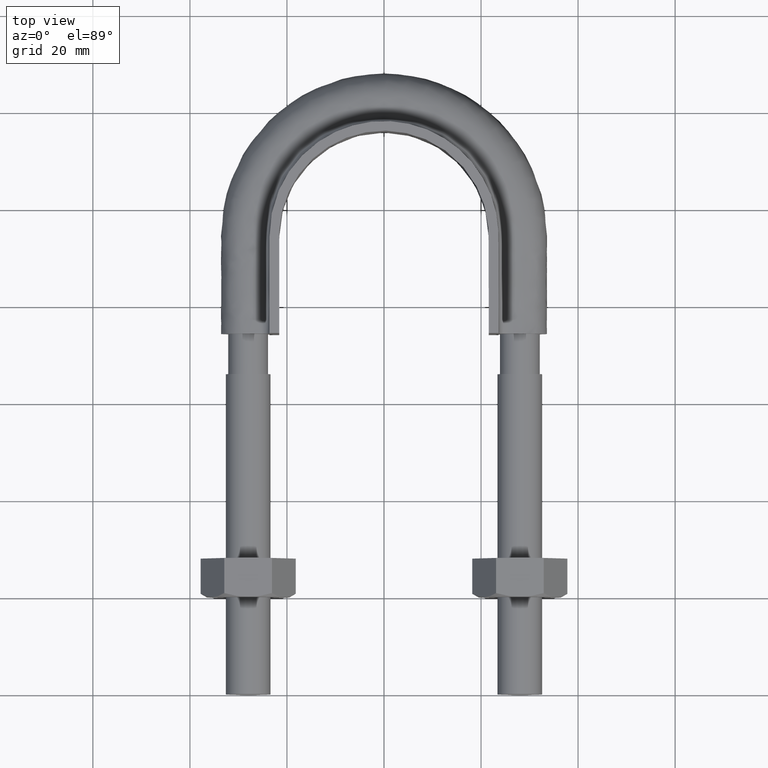
[diagram: clean part render]
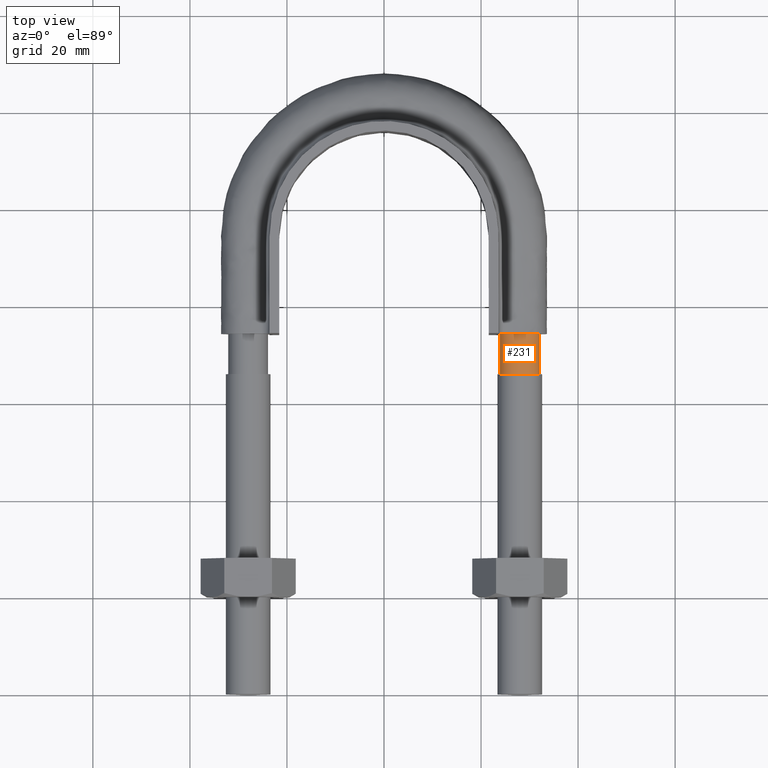
[diagram: same view with one face highlighted and labeled with its STEP entity id]
A machine part, top view. The second image highlights one B-rep face of the part: STEP entity #231.
In plain terms, the highlighted cylindrical surface (bore or boss wall) has radius 4.1 mm, axis along (-0, -1, -0).
Its self-contained STEP definition (entity closure, byte-faithful):
#231 = ADVANCED_FACE( '', ( #325, #326 ), #327, .T. );
#325 = FACE_OUTER_BOUND( '', #1322, .T. );
#326 = FACE_OUTER_BOUND( '', #1323, .T. );
#327 = CYLINDRICAL_SURFACE( '', #1324, 4.10000000000000 );
#1322 = EDGE_LOOP( '', ( #1563 ) );
#1323 = EDGE_LOOP( '', ( #1564, #1565, #1566, #1567, #1568, #1569, #1570 ) );
#1324 = AXIS2_PLACEMENT_3D( '', #1571, #1572, #1573 );
#1563 = ORIENTED_EDGE( '', *, *, #2039, .T. );
#1564 = ORIENTED_EDGE( '', *, *, #2040, .T. );
#1565 = ORIENTED_EDGE( '', *, *, #2041, .T. );
#1566 = ORIENTED_EDGE( '', *, *, #2042, .T. );
#1567 = ORIENTED_EDGE( '', *, *, #2043, .T. );
#1568 = ORIENTED_EDGE( '', *, *, #2044, .T. );
#1569 = ORIENTED_EDGE( '', *, *, #2045, .T. );
#1570 = ORIENTED_EDGE( '', *, *, #2046, .T. );
#1571 = CARTESIAN_POINT( '', ( 28.0000000000000, 74.3000000000000, 2.02060048380692E-015 ) );
#1572 = DIRECTION( '', ( -2.44921270764475E-016, -1.00000000000000, -6.12303176911189E-017 ) );
#1573 = DIRECTION( '', ( 1.00000000000000, -2.44921270764475E-016, -7.49830360911069E-033 ) );
#2039 = EDGE_CURVE( '', #2216, #2216, #2217, .T. );
#2040 = EDGE_CURVE( '', #2201, #2199, #2218, .T. );
#2041 = EDGE_CURVE( '', #2199, #2197, #2219, .T. );
#2042 = EDGE_CURVE( '', #2197, #2196, #2220, .T. );
#2043 = EDGE_CURVE( '', #2196, #2207, #2221, .T. );
#2044 = EDGE_CURVE( '', #2207, #2205, #2222, .T. );
#2045 = EDGE_CURVE( '', #2205, #2203, #2223, .T. );
#2046 = EDGE_CURVE( '', #2203, #2201, #2224, .T. );
#2196 = VERTEX_POINT( '', #2650 );
#2197 = VERTEX_POINT( '', #2651 );
#2199 = VERTEX_POINT( '', #2656 );
#2201 = VERTEX_POINT( '', #2661 );
#2203 = VERTEX_POINT( '', #2666 );
#2205 = VERTEX_POINT( '', #2671 );
#2207 = VERTEX_POINT( '', #2676 );
#2216 = VERTEX_POINT( '', #2709 );
#2217 = CIRCLE( '', #2710, 4.10000000000000 );
#2218 = CIRCLE( '', #2711, 4.10000000000000 );
#2219 = CIRCLE( '', #2712, 4.10000000000000 );
#2220 = CIRCLE( '', #2713, 4.10000000000000 );
#2221 = CIRCLE( '', #2714, 4.10000000000000 );
#2222 = CIRCLE( '', #2715, 4.10000000000000 );
#2223 = CIRCLE( '', #2716, 4.10000000000000 );
#2224 = CIRCLE( '', #2717, 4.10000000000000 );
#2650 = CARTESIAN_POINT( '', ( 23.9000000000000, 74.3000000000000, -2.72765919113833E-014 ) );
#2651 = CARTESIAN_POINT( '', ( 25.4436918123792, 74.3000000000000, 3.20550907811889 ) );
#2656 = CARTESIAN_POINT( '', ( 28.9123358292209, 74.3000000000000, 3.99720443994547 ) );
#2661 = CARTESIAN_POINT( '', ( 31.6939723583998, 74.3000000000000, 1.77892333038222 ) );
#2666 = CARTESIAN_POINT( '', ( 31.6939723583999, 74.3000000000000, -1.77892333038213 ) );
#2671 = CARTESIAN_POINT( '', ( 28.9123358292214, 74.3000000000000, -3.99720443994536 ) );
#2676 = CARTESIAN_POINT( '', ( 25.4436918123817, 74.3000000000000, -3.20550907812087 ) );
#2709 = CARTESIAN_POINT( '', ( 32.1000000000000, 66.0000000000000, 1.51238884697064E-015 ) );
#2710 = AXIS2_PLACEMENT_3D( '', #3084, #3085, #3086 );
#2711 = AXIS2_PLACEMENT_3D( '', #3087, #3088, #3089 );
#2712 = AXIS2_PLACEMENT_3D( '', #3090, #3091, #3092 );
#2713 = AXIS2_PLACEMENT_3D( '', #3093, #3094, #3095 );
#2714 = AXIS2_PLACEMENT_3D( '', #3096, #3097, #3098 );
#2715 = AXIS2_PLACEMENT_3D( '', #3099, #3100, #3101 );
#2716 = AXIS2_PLACEMENT_3D( '', #3102, #3103, #3104 );
#2717 = AXIS2_PLACEMENT_3D( '', #3105, #3106, #3107 );
#3084 = CARTESIAN_POINT( '', ( 28.0000000000000, 66.0000000000000, 1.51238884697064E-015 ) );
#3085 = DIRECTION( '', ( 2.44921270764475E-016, 1.00000000000000, 6.12303176911188E-017 ) );
#3086 = DIRECTION( '', ( 1.00000000000000, -2.44921270764475E-016, 0.000000000000000 ) );
#3087 = CARTESIAN_POINT( '', ( 28.0000000000000, 74.3000000000000, 2.02060048380692E-015 ) );
#3088 = DIRECTION( '', ( -2.44921270764475E-016, -1.00000000000000, -6.12303176911189E-017 ) );
#3089 = DIRECTION( '', ( 1.00000000000000, -2.44921270764475E-016, -7.49830360911069E-033 ) );
#3090 = CARTESIAN_POINT( '', ( 28.0000000000000, 74.3000000000000, 2.02060048380692E-015 ) );
#3091 = DIRECTION( '', ( -2.44921270764475E-016, -1.00000000000000, -6.12303176911189E-017 ) );
#3092 = DIRECTION( '', ( 1.00000000000000, -2.44921270764475E-016, -7.49830360911069E-033 ) );
#3093 = CARTESIAN_POINT( '', ( 28.0000000000000, 74.3000000000000, 2.02060048380692E-015 ) );
#3094 = DIRECTION( '', ( -2.44921270764475E-016, -1.00000000000000, -6.12303176911189E-017 ) );
#3095 = DIRECTION( '', ( 1.00000000000000, -2.44921270764475E-016, -7.49830360911069E-033 ) );
#3096 = CARTESIAN_POINT( '', ( 28.0000000000000, 74.3000000000000, 2.02060048380692E-015 ) );
#3097 = DIRECTION( '', ( -2.44921270764475E-016, -1.00000000000000, -6.12303176911189E-017 ) );
#3098 = DIRECTION( '', ( 1.00000000000000, -2.44921270764475E-016, -7.49830360911069E-033 ) );
#3099 = CARTESIAN_POINT( '', ( 28.0000000000000, 74.3000000000000, 2.02060048380692E-015 ) );
#3100 = DIRECTION( '', ( -2.44921270764475E-016, -1.00000000000000, -6.12303176911189E-017 ) );
#3101 = DIRECTION( '', ( 1.00000000000000, -2.44921270764475E-016, -7.49830360911069E-033 ) );
#3102 = CARTESIAN_POINT( '', ( 28.0000000000000, 74.3000000000000, 2.02060048380692E-015 ) );
#3103 = DIRECTION( '', ( -2.44921270764475E-016, -1.00000000000000, -6.12303176911189E-017 ) );
#3104 = DIRECTION( '', ( 1.00000000000000, -2.44921270764475E-016, -7.49830360911069E-033 ) );
#3105 = CARTESIAN_POINT( '', ( 28.0000000000000, 74.3000000000000, 2.02060048380692E-015 ) );
#3106 = DIRECTION( '', ( -2.44921270764475E-016, -1.00000000000000, -6.12303176911189E-017 ) );
#3107 = DIRECTION( '', ( 1.00000000000000, -2.44921270764475E-016, -7.49830360911069E-033 ) );